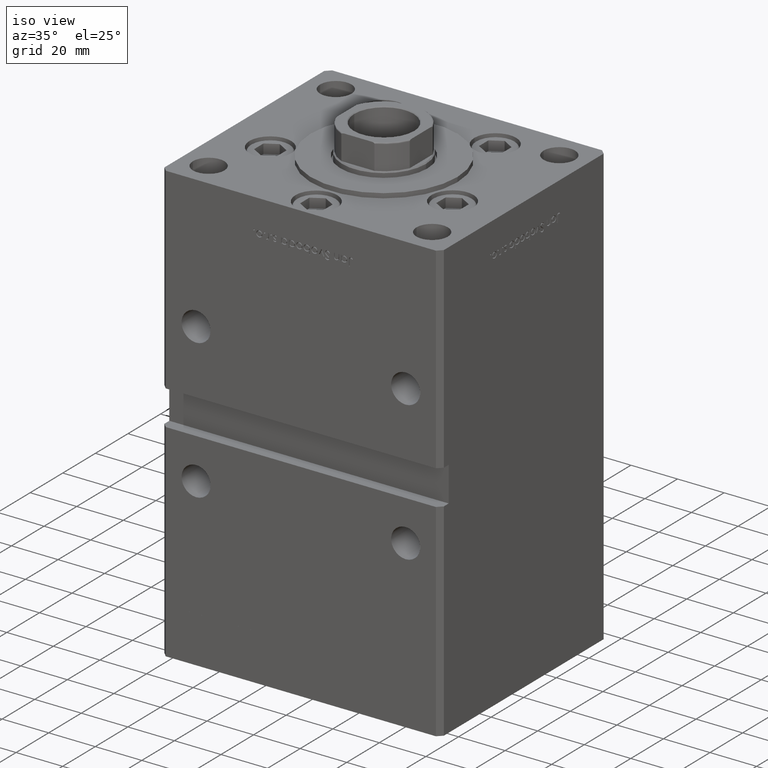
[diagram: clean part render]
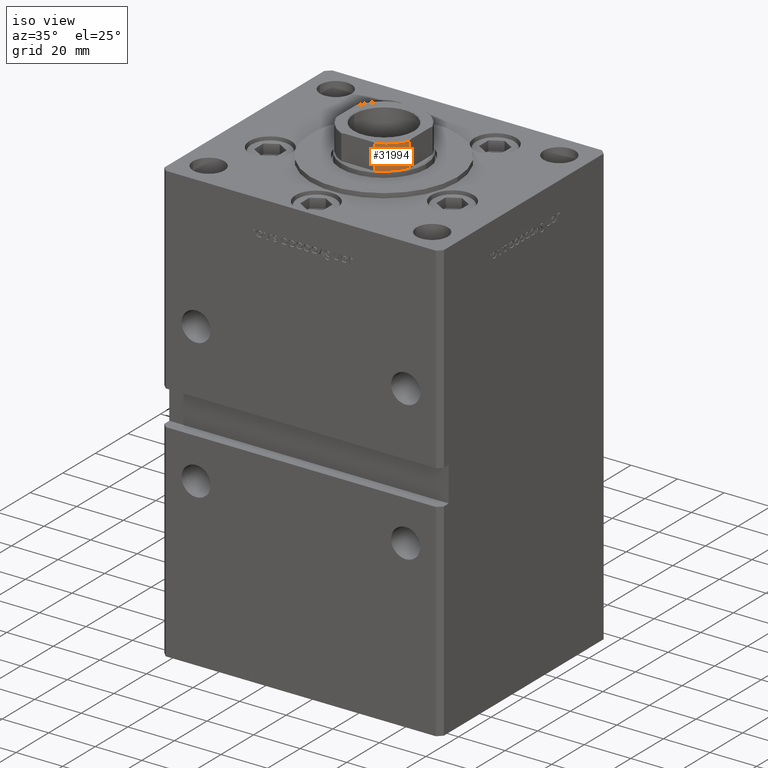
[diagram: same view with one face highlighted and labeled with its STEP entity id]
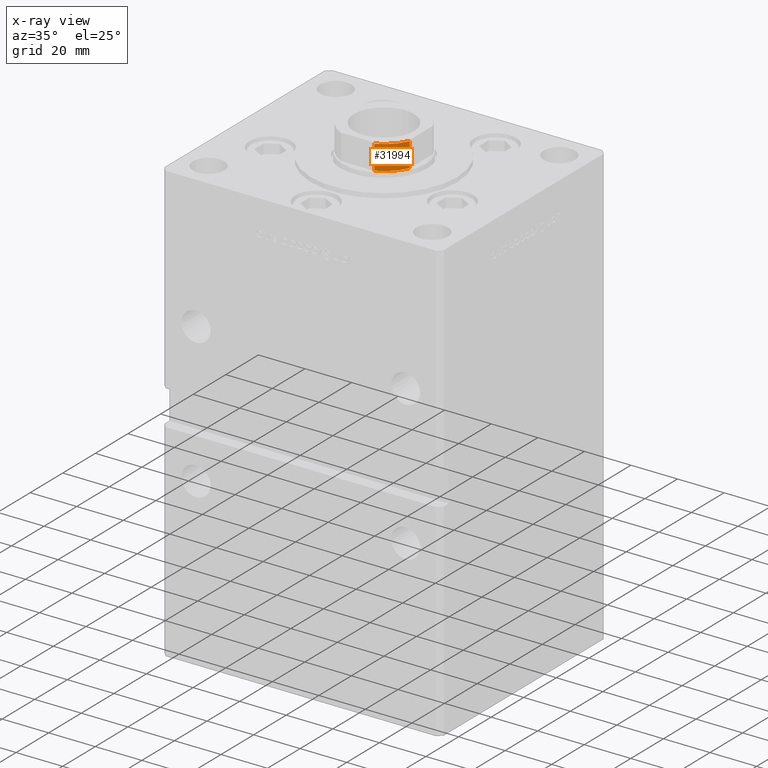
[diagram: x-ray of the same camera — body ghosted, the highlighted face saturated]
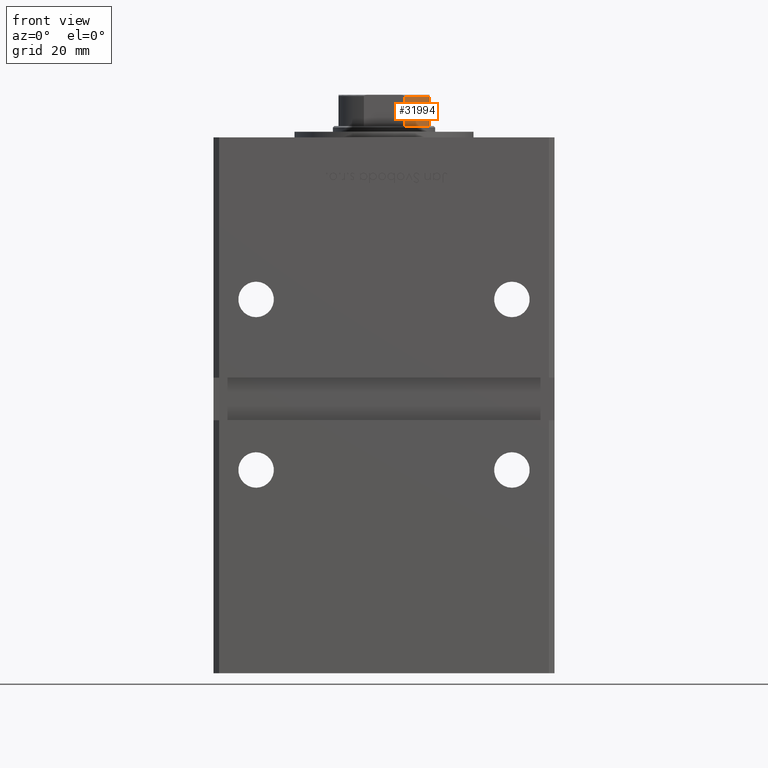
[diagram: same view with one face highlighted and labeled with its STEP entity id]
A machine part, iso view. The second image highlights one B-rep face of the part: STEP entity #31994.
The next image is the same camera in x-ray: the body ghosted, the highlighted face saturated — about 0% of this face is hidden behind the body in this view.
A second angle (front view) of the same face is appended — the face is thin or edge-on in the first view.
In plain terms, the highlighted cylindrical surface (partial cylindrical patch) has radius 17.5 mm, axis along (0, 0, 1).
Its self-contained STEP definition (entity closure, byte-faithful):
#551 = EDGE_CURVE ( 'NONE', #53084, #14451, #2429, .T. ) ;
#600 = EDGE_CURVE ( 'NONE', #15109, #14451, #25170, .T. ) ;
#2429 = LINE ( 'NONE', #42685, #46578 ) ;
#3873 = AXIS2_PLACEMENT_3D ( 'NONE', #27650, #38916, #15564 ) ;
#13339 = LINE ( 'NONE', #17094, #51870 ) ;
#13723 = DIRECTION ( 'NONE',  ( 0.000000000000000000, -0.000000000000000000, -1.000000000000000000 ) ) ;
#14074 = CARTESIAN_POINT ( 'NONE',  ( 0.000000000000000000, 0.000000000000000000, -0.001000000000001000089 ) ) ;
#14451 = VERTEX_POINT ( 'NONE', #42974 ) ;
#15109 = VERTEX_POINT ( 'NONE', #23460 ) ;
#15141 = CARTESIAN_POINT ( 'NONE',  ( 7.088723439378916247, -16.00000000000000000, 158.2500000000000284 ) ) ;
#15564 = DIRECTION ( 'NONE',  ( 1.000000000000000000, 0.000000000000000000, 0.000000000000000000 ) ) ;
#16195 = AXIS2_PLACEMENT_3D ( 'NONE', #14074, #30426, #50589 ) ;
#17094 = CARTESIAN_POINT ( 'NONE',  ( 15.99999999999999645, -7.088723439378925129, -0.001000000000001000089 ) ) ;
#20070 = ORIENTED_EDGE ( 'NONE', *, *, #20830, .T. ) ;
#20830 = EDGE_CURVE ( 'NONE', #53084, #32167, #42429, .T. ) ;
#21147 = EDGE_LOOP ( 'NONE', ( #42709, #37568, #23036, #20070 ) ) ;
#21158 = EDGE_CURVE ( 'NONE', #32167, #15109, #13339, .T. ) ;
#23036 = ORIENTED_EDGE ( 'NONE', *, *, #551, .F. ) ;
#23460 = CARTESIAN_POINT ( 'NONE',  ( 15.99999999999999645, -7.088723439378925129, 168.7500000000000000 ) ) ;
#24331 = AXIS2_PLACEMENT_3D ( 'NONE', #34095, #13723, #30075 ) ;
#25170 = CIRCLE ( 'NONE', #24331, 17.50000000000000000 ) ;
#26159 = CYLINDRICAL_SURFACE ( 'NONE', #16195, 17.50000000000000000 ) ;
#26324 = DIRECTION ( 'NONE',  ( -0.000000000000000000, -0.000000000000000000, 1.000000000000000000 ) ) ;
#27650 = CARTESIAN_POINT ( 'NONE',  ( 0.000000000000000000, 0.000000000000000000, 158.2500000000000000 ) ) ;
#30075 = DIRECTION ( 'NONE',  ( 1.000000000000000000, 0.000000000000000000, 0.000000000000000000 ) ) ;
#30426 = DIRECTION ( 'NONE',  ( -0.000000000000000000, -0.000000000000000000, 1.000000000000000000 ) ) ;
#30688 = FACE_OUTER_BOUND ( 'NONE', #21147, .T. ) ;
#31994 = ADVANCED_FACE ( 'NONE', ( #30688 ), #26159, .T. ) ;
#32167 = VERTEX_POINT ( 'NONE', #48963 ) ;
#33445 = DIRECTION ( 'NONE',  ( -0.000000000000000000, -0.000000000000000000, 1.000000000000000000 ) ) ;
#34095 = CARTESIAN_POINT ( 'NONE',  ( 0.000000000000000000, 0.000000000000000000, 168.7500000000000000 ) ) ;
#37568 = ORIENTED_EDGE ( 'NONE', *, *, #600, .T. ) ;
#38916 = DIRECTION ( 'NONE',  ( 0.000000000000000000, 0.000000000000000000, 1.000000000000000000 ) ) ;
#42429 = CIRCLE ( 'NONE', #3873, 17.50000000000001421 ) ;
#42685 = CARTESIAN_POINT ( 'NONE',  ( 7.088723439378916247, -16.00000000000000000, -0.001000000000001000089 ) ) ;
#42709 = ORIENTED_EDGE ( 'NONE', *, *, #21158, .T. ) ;
#42974 = CARTESIAN_POINT ( 'NONE',  ( 7.088723439378916247, -16.00000000000000000, 168.7500000000000000 ) ) ;
#46578 = VECTOR ( 'NONE', #26324, 1000.000000000000000 ) ;
#48963 = CARTESIAN_POINT ( 'NONE',  ( 15.99999999999999645, -7.088723439378925129, 158.2500000000000284 ) ) ;
#50589 = DIRECTION ( 'NONE',  ( 1.000000000000000000, 0.000000000000000000, 0.000000000000000000 ) ) ;
#51870 = VECTOR ( 'NONE', #33445, 1000.000000000000000 ) ;
#53084 = VERTEX_POINT ( 'NONE', #15141 ) ;